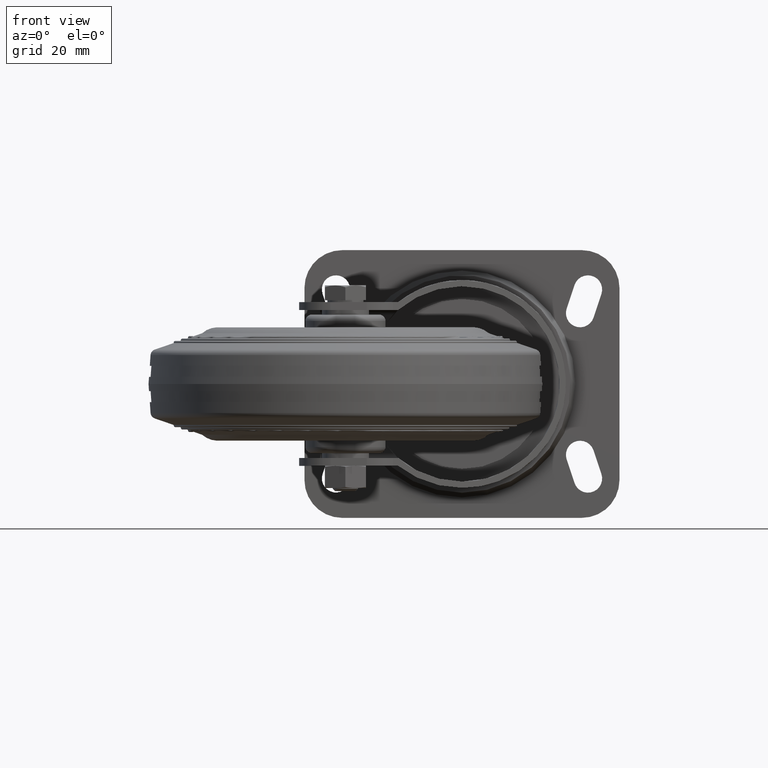
[diagram: clean part render]
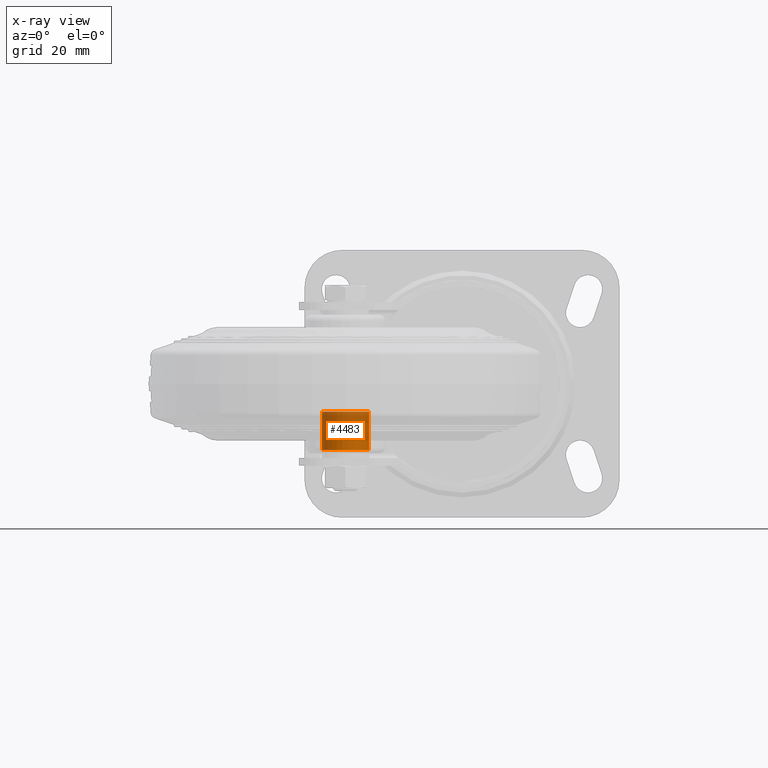
[diagram: x-ray — body ghosted, one internal face saturated and labeled with its STEP entity id]
A machine part, front view, then the same camera in x-ray: the body is ghosted and one INTERNAL B-rep face — a face not visible from any outside direction — is saturated and labeled: STEP entity #4483.
In plain terms, the highlighted cylindrical surface (bore or boss wall) has radius 7.5 mm, axis along (0, 0, -1).
Its self-contained STEP definition (entity closure, byte-faithful):
#145=CYLINDRICAL_SURFACE('',#4949,7.5);
#299=CIRCLE('',#4948,7.5);
#300=CIRCLE('',#4950,7.5);
#524=FACE_OUTER_BOUND('',#799,.T.);
#799=EDGE_LOOP('',(#2933,#2934,#2935,#2936));
#1136=LINE('',#6974,#1487);
#1487=VECTOR('',#5562,7.5);
#1855=VERTEX_POINT('',#6970);
#1856=VERTEX_POINT('',#6973);
#2276=EDGE_CURVE('',#1855,#1855,#299,.T.);
#2277=EDGE_CURVE('',#1855,#1856,#1136,.T.);
#2278=EDGE_CURVE('',#1856,#1856,#300,.T.);
#2933=ORIENTED_EDGE('',*,*,#2276,.T.);
#2934=ORIENTED_EDGE('',*,*,#2277,.T.);
#2935=ORIENTED_EDGE('',*,*,#2278,.F.);
#2936=ORIENTED_EDGE('',*,*,#2277,.F.);
#4483=ADVANCED_FACE('',(#524),#145,.F.);
#4948=AXIS2_PLACEMENT_3D('',#6971,#5558,#5559);
#4949=AXIS2_PLACEMENT_3D('',#6972,#5560,#5561);
#4950=AXIS2_PLACEMENT_3D('',#6975,#5563,#5564);
#5558=DIRECTION('center_axis',(1.,0.,0.));
#5559=DIRECTION('ref_axis',(0.,0.,-1.));
#5560=DIRECTION('center_axis',(-1.,0.,0.));
#5561=DIRECTION('ref_axis',(0.,0.,-1.));
#5562=DIRECTION('',(-1.,0.,0.));
#5563=DIRECTION('center_axis',(1.,0.,0.));
#5564=DIRECTION('ref_axis',(0.,0.,-1.));
#6970=CARTESIAN_POINT('',(13.2,9.18485099360515E-16,7.5));
#6971=CARTESIAN_POINT('Origin',(13.2,0.,0.));
#6972=CARTESIAN_POINT('Origin',(22.,0.,0.));
#6973=CARTESIAN_POINT('',(1.,9.18485099360515E-16,7.5));
#6974=CARTESIAN_POINT('',(22.,9.18485099360515E-16,7.5));
#6975=CARTESIAN_POINT('Origin',(1.,0.,0.));